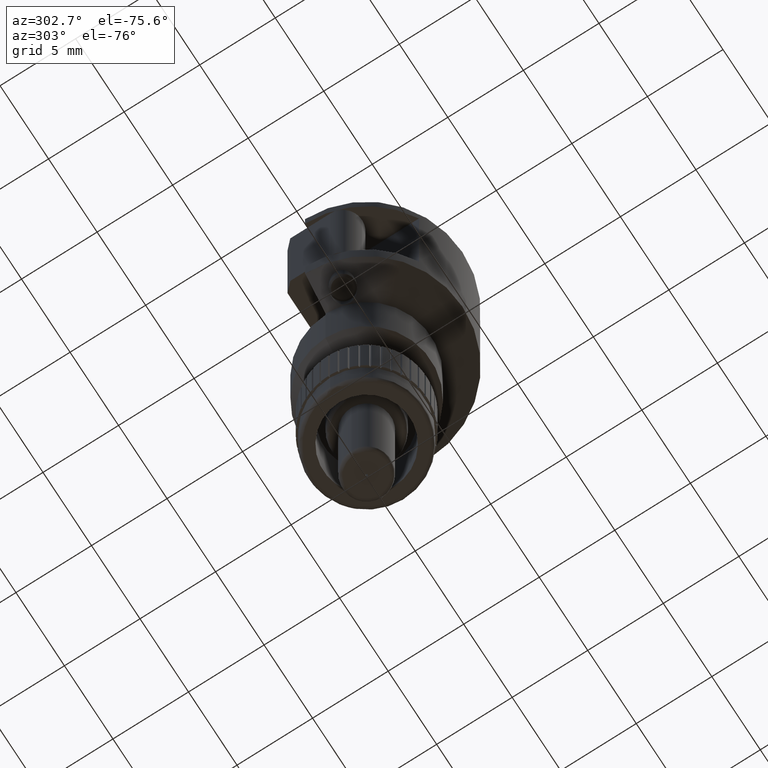
[diagram: clean part render]
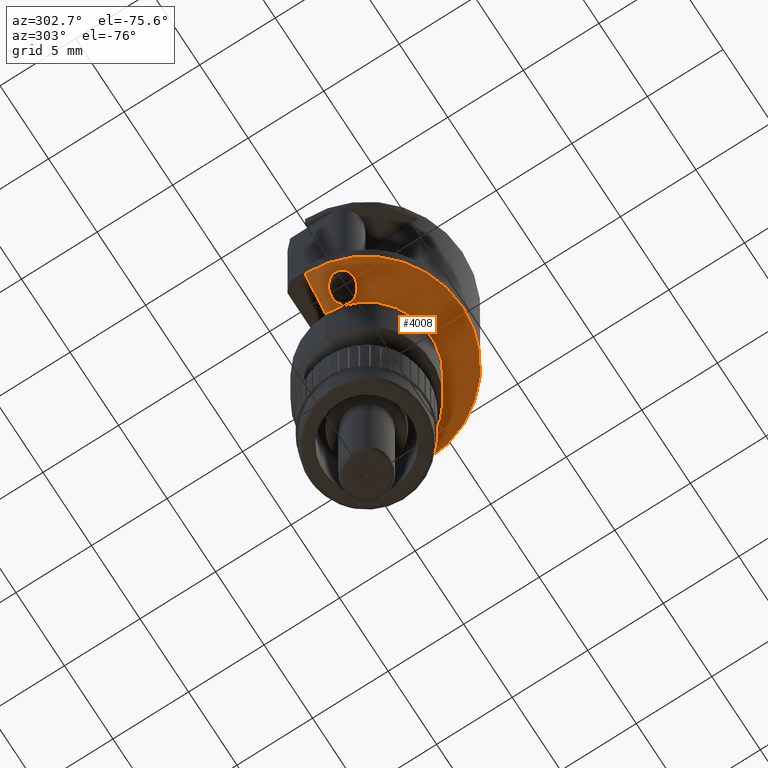
[diagram: same view with one face highlighted and labeled with its STEP entity id]
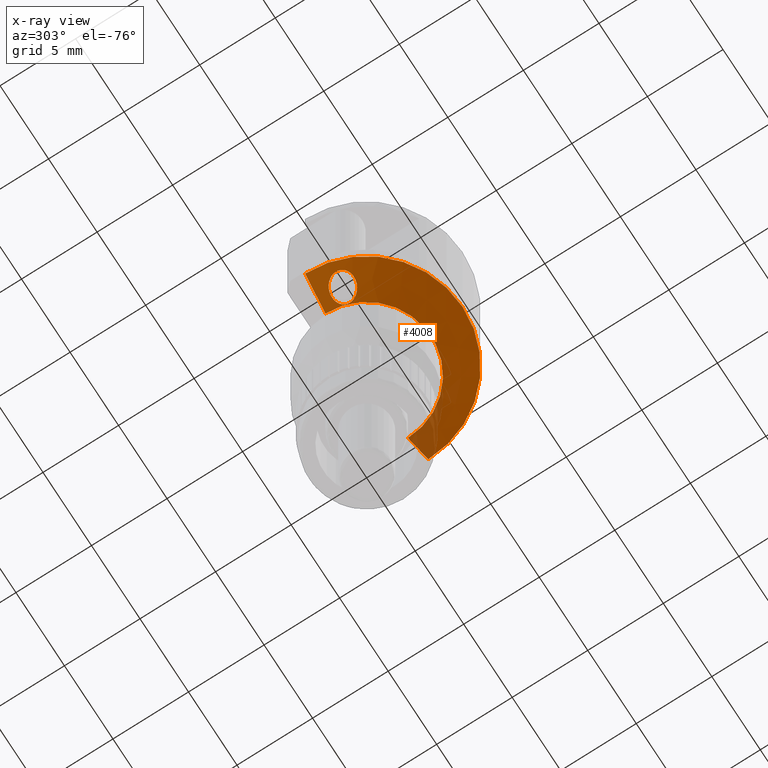
[diagram: x-ray of the same camera — body ghosted, the highlighted face saturated]
A machine part, auxiliary view. The second image highlights one B-rep face of the part: STEP entity #4008.
The next image is the same camera in x-ray: the body ghosted, the highlighted face saturated — about 8% of this face is hidden behind the body in this view.
In plain terms, the highlighted conical surface has half-angle 45 deg.
Its self-contained STEP definition (entity closure, byte-faithful):
#179 = CARTESIAN_POINT ( 'NONE',  ( -0.2201212433583348000, -0.05064356665654068400, 0.2278572586439734100 ) ) ;
#463 = ORIENTED_EDGE ( 'NONE', *, *, #944, .T. ) ;
#484 = EDGE_CURVE ( 'NONE', #958, #7438, #1678, .T. ) ;
#785 = CARTESIAN_POINT ( 'NONE',  ( -0.1987958684795002300, -0.02980462733982114700, 0.2030269027673632400 ) ) ;
#815 = CARTESIAN_POINT ( 'NONE',  ( -0.1741259812981024200, -0.03275905625190889800, 0.1791631853616843800 ) ) ;
#907 = ORIENTED_EDGE ( 'NONE', *, *, #1907, .T. ) ;
#917 = CARTESIAN_POINT ( 'NONE',  ( -0.1587499999999999500, -0.06000000000000002600, 0.1717212546041542200 ) ) ;
#932 = CARTESIAN_POINT ( 'NONE',  ( 0.2498000000000004900, 4.390929674800009300E-022, 0.2518110236220472700 ) ) ;
#944 = EDGE_CURVE ( 'NONE', #1706, #1285, #6385, .T. ) ;
#958 = VERTEX_POINT ( 'NONE', #3385 ) ;
#995 = DIRECTION ( 'NONE',  ( 0.0000000000000000000, 0.0000000000000000000, -1.000000000000000000 ) ) ;
#1074 = CARTESIAN_POINT ( 'NONE',  ( -0.1937121455032225500, -0.09127891693943583600, 0.2161375851701725100 ) ) ;
#1113 = CARTESIAN_POINT ( 'NONE',  ( -0.1587499999999957600, -0.06472458594551366900, 0.1733916026738573600 ) ) ;
#1285 = VERTEX_POINT ( 'NONE', #4735 ) ;
#1553 = CARTESIAN_POINT ( 'NONE',  ( -0.2084367965160800800, -0.03447915332888135800, 0.2132700794786261700 ) ) ;
#1678 = CIRCLE ( 'NONE', #5608, 0.2498000000000004900 ) ;
#1706 = VERTEX_POINT ( 'NONE', #7614 ) ;
#1790 = DIRECTION ( 'NONE',  ( 1.000000000000000000, 0.0000000000000000000, 0.0000000000000000000 ) ) ;
#1818 = CARTESIAN_POINT ( 'NONE',  ( -0.2212500000000210700, -0.05999999999998795200, 0.2312522993557303800 ) ) ;
#1853 = CARTESIAN_POINT ( 'NONE',  ( -0.1652060111629022900, -0.07935477041793026500, 0.1852834592158775200 ) ) ;
#1907 = EDGE_CURVE ( 'NONE', #1285, #1706, #3861, .T. ) ;
#2032 = ORIENTED_EDGE ( 'NONE', *, *, #7571, .F. ) ;
#2532 = CARTESIAN_POINT ( 'NONE',  ( -0.1792122072359392200, -0.09021021985484049800, 0.2026327876145148900 ) ) ;
#2536 = LINE ( 'NONE', #5906, #9335 ) ;
#2747 = VERTEX_POINT ( 'NONE', #4340 ) ;
#2756 = LINE ( 'NONE', #8280, #4890 ) ;
#2981 = ORIENTED_EDGE ( 'NONE', *, *, #7779, .F. ) ;
#3283 = CARTESIAN_POINT ( 'NONE',  ( -0.1727255564343034300, -0.08700559536531656000, 0.1953977119297838300 ) ) ;
#3385 = CARTESIAN_POINT ( 'NONE',  ( -0.2498000000000004900, -6.148230289764216500E-021, 0.2518110236220472700 ) ) ;
#3822 = CARTESIAN_POINT ( 'NONE',  ( -0.1883192321608883900, -0.02859959319501952800, 0.1924892869362113700 ) ) ;
#3861 = B_SPLINE_CURVE_WITH_KNOTS ( 'NONE', 3,
 ( #917, #7760, #8535, #9293, #5335, #815, #8404, #5368, #3822, #6163, #785, #6123, #1553, #4613, #6900, #179, #4019, #8556 ),
 .UNSPECIFIED., .F., .F.,
 ( 4, 2, 2, 2, 2, 2, 2, 2, 4 ),
 ( 0.001874166819273312200, 0.002251481928110483900, 0.002628797036947655400, 0.003006112145784827400, 0.003383427254621999300, 0.003760742363459170800, 0.004138057472296342300, 0.004515372581133513800, 0.004892687689970685400 ),
 .UNSPECIFIED. ) ;
#4008 = ADVANCED_FACE ( 'NONE', ( #6261, #6015 ), #4197, .T. ) ;
#4019 = CARTESIAN_POINT ( 'NONE',  ( -0.2212500000000023900, -0.05517933752840360100, 0.2299905730484871900 ) ) ;
#4108 = CARTESIAN_POINT ( 'NONE',  ( -0.1598001676490267700, -0.06896611753877784900, 0.1760378137012655900 ) ) ;
#4134 = CARTESIAN_POINT ( 'NONE',  ( -0.1900057533886057300, -0.09145918476373539300, 0.2128795065637187600 ) ) ;
#4177 = CARTESIAN_POINT ( 'NONE',  ( -0.2052019038630119600, -0.08766078140492088200, 0.2251203834033527500 ) ) ;
#4197 = CONICAL_SURFACE ( 'NONE', #9085, 0.2498000000000004900, 0.7853981633974533900 ) ;
#4340 = CARTESIAN_POINT ( 'NONE',  ( 0.1673000000000000000, 0.0000000000000000000, 0.1693110236220476100 ) ) ;
#4613 = CARTESIAN_POINT ( 'NONE',  ( -0.2140538231582438100, -0.03968639194879399600, 0.2197028411986959000 ) ) ;
#4735 = CARTESIAN_POINT ( 'NONE',  ( -0.1587499999999999500, -0.06000000000000002600, 0.1717212546041542200 ) ) ;
#4888 = CARTESIAN_POINT ( 'NONE',  ( -0.1630139864434260500, -0.07625349839482183100, 0.1819584062367253000 ) ) ;
#4890 = VECTOR ( 'NONE', #8917, 39.37007874015748100 ) ;
#5283 = DIRECTION ( 'NONE',  ( -0.0000000000000000000, -0.0000000000000000000, 1.000000000000000000 ) ) ;
#5335 = CARTESIAN_POINT ( 'NONE',  ( -0.1675215316315916400, -0.03789181269652970600, 0.1737350123630130600 ) ) ;
#5368 = CARTESIAN_POINT ( 'NONE',  ( -0.1847382813784347000, -0.02897494768994423500, 0.1890008438778277300 ) ) ;
#5569 = CARTESIAN_POINT ( 'NONE',  ( -0.2122954737168067700, -0.08234118530280461200, 0.2296840159470304700 ) ) ;
#5597 = ORIENTED_EDGE ( 'NONE', *, *, #484, .F. ) ;
#5608 = AXIS2_PLACEMENT_3D ( 'NONE', #6379, #8689, #1790 ) ;
#5632 = CARTESIAN_POINT ( 'NONE',  ( -0.2155467742942210300, -0.07865829244163706500, 0.2314098986902666800 ) ) ;
#5701 = CARTESIAN_POINT ( 'NONE',  ( -0.2200439915638041100, -0.06990596409197950800, 0.2328410629216307000 ) ) ;
#5871 = DIRECTION ( 'NONE',  ( -0.7071067811865511300, -0.0000000000000000000, 0.7071067811865439100 ) ) ;
#5906 = CARTESIAN_POINT ( 'NONE',  ( 0.0000000000000000000, 0.0000000000000000000, 0.002011023622049301600 ) ) ;
#6015 = FACE_OUTER_BOUND ( 'NONE', #9478, .T. ) ;
#6033 = DIRECTION ( 'NONE',  ( 1.000000000000000000, 0.0000000000000000000, 0.0000000000000000000 ) ) ;
#6123 = CARTESIAN_POINT ( 'NONE',  ( -0.2053356356052149800, -0.03254192080680428500, 0.2099075613334141200 ) ) ;
#6163 = CARTESIAN_POINT ( 'NONE',  ( -0.1953068785253060400, -0.02900568490247120900, 0.1994597648653200800 ) ) ;
#6245 = CARTESIAN_POINT ( 'NONE',  ( -0.1673000000000000000, 0.0000000000000000000, 0.1693110236220476100 ) ) ;
#6261 = FACE_BOUND ( 'NONE', #9687, .T. ) ;
#6298 = DIRECTION ( 'NONE',  ( 1.000000000000000000, 0.0000000000000000000, 0.0000000000000000000 ) ) ;
#6379 = CARTESIAN_POINT ( 'NONE',  ( 0.0000000000000000000, 0.0000000000000000000, 0.2518110236220472700 ) ) ;
#6385 = B_SPLINE_CURVE_WITH_KNOTS ( 'NONE', 3,
 ( #1818, #6403, #5701, #5632, #5569, #4177, #7090, #1074, #4134, #2532, #3283, #1853, #4888, #4108, #1113, #7143 ),
 .UNSPECIFIED., .F., .F.,
 ( 4, 2, 2, 2, 2, 2, 2, 4 ),
 ( 0.004892687689970685400, 0.005269208075731328400, 0.005645728461491969700, 0.006022248847252611800, 0.006398769233013254000, 0.007151810004534537400, 0.007528330390295181300, 0.007904850776055825200 ),
 .UNSPECIFIED. ) ;
#6403 = CARTESIAN_POINT ( 'NONE',  ( -0.2212500000000043000, -0.06481050891128187200, 0.2325113681414460500 ) ) ;
#6477 = CIRCLE ( 'NONE', #9310, 0.1673000000000000000 ) ;
#6860 = VERTEX_POINT ( 'NONE', #6245 ) ;
#6900 = CARTESIAN_POINT ( 'NONE',  ( -0.2165024197877817900, -0.04289871666351271300, 0.2226962902748204900 ) ) ;
#7047 = CARTESIAN_POINT ( 'NONE',  ( 0.0000000000000000000, 0.0000000000000000000, 0.1693110236220476100 ) ) ;
#7090 = CARTESIAN_POINT ( 'NONE',  ( -0.2013749981585580000, -0.08937277797611291300, 0.2223138417925186500 ) ) ;
#7143 = CARTESIAN_POINT ( 'NONE',  ( -0.1587499999999999500, -0.06000000000000002600, 0.1717212546041542200 ) ) ;
#7336 = ORIENTED_EDGE ( 'NONE', *, *, #9521, .F. ) ;
#7438 = VERTEX_POINT ( 'NONE', #932 ) ;
#7571 = EDGE_CURVE ( 'NONE', #6860, #958, #2536, .T. ) ;
#7614 = CARTESIAN_POINT ( 'NONE',  ( -0.2212500000000210700, -0.05999999999998795200, 0.2312522993557303800 ) ) ;
#7760 = CARTESIAN_POINT ( 'NONE',  ( -0.1587499999999948100, -0.05526544185213640200, 0.1700473809241230500 ) ) ;
#7779 = EDGE_CURVE ( 'NONE', #2747, #6860, #6477, .T. ) ;
#8280 = CARTESIAN_POINT ( 'NONE',  ( 0.0000000000000000000, 0.0000000000000000000, 0.002011023622049301600 ) ) ;
#8404 = CARTESIAN_POINT ( 'NONE',  ( -0.1776417959827762700, -0.03106015986286552200, 0.1823405938252989100 ) ) ;
#8535 = CARTESIAN_POINT ( 'NONE',  ( -0.1599233543262910100, -0.05017890451563126300, 0.1695516153828657800 ) ) ;
#8556 = CARTESIAN_POINT ( 'NONE',  ( -0.2212500000000210700, -0.05999999999998795200, 0.2312522993557303800 ) ) ;
#8689 = DIRECTION ( 'NONE',  ( 0.0000000000000000000, 0.0000000000000000000, 1.000000000000000000 ) ) ;
#8917 = DIRECTION ( 'NONE',  ( -0.7071067811865511300, -0.0000000000000000000, -0.7071067811865439100 ) ) ;
#8988 = CARTESIAN_POINT ( 'NONE',  ( 0.0000000000000000000, 0.0000000000000000000, 0.2518110236220472700 ) ) ;
#9085 = AXIS2_PLACEMENT_3D ( 'NONE', #8988, #5283, #6033 ) ;
#9293 = CARTESIAN_POINT ( 'NONE',  ( -0.1644301010419449700, -0.04136565539736409400, 0.1714950162152172900 ) ) ;
#9310 = AXIS2_PLACEMENT_3D ( 'NONE', #7047, #995, #6298 ) ;
#9335 = VECTOR ( 'NONE', #5871, 39.37007874015748100 ) ;
#9478 = EDGE_LOOP ( 'NONE', ( #2032, #2981, #7336, #5597 ) ) ;
#9521 = EDGE_CURVE ( 'NONE', #7438, #2747, #2756, .T. ) ;
#9687 = EDGE_LOOP ( 'NONE', ( #907, #463 ) ) ;